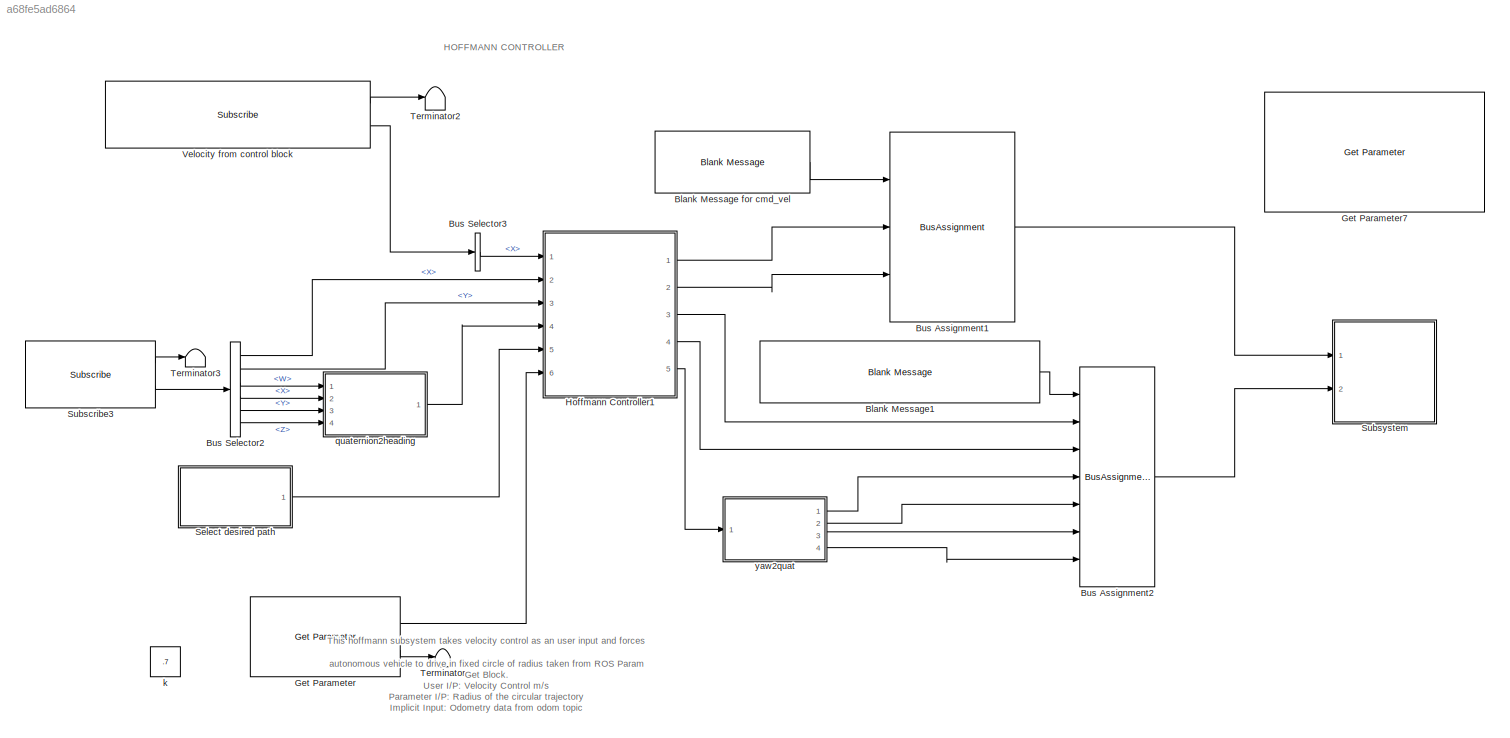
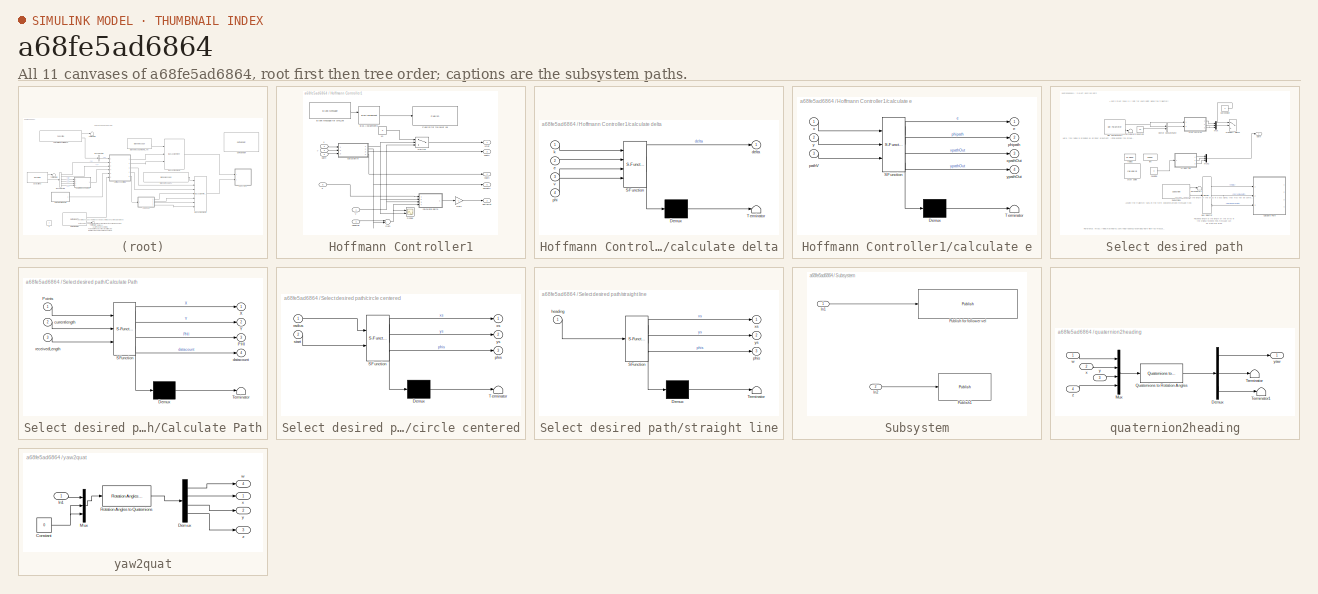
[diagram: thumbnail index - all 11 canvases of the model, root first then tree order]
MODEL slx_a68fe5ad6864
KIND model
CONFIG AbsTol = auto
CONFIG EnableMultiTasking = on
CONFIG FixedStep = 0.01
CONFIG MaxStep = auto
CONFIG MinStep = auto
CONFIG RelTol = 1e-3
CONFIG SampleTimeConstraint = Unconstrained
CONFIG SolverName = FixedStepAuto
CONFIG StartTime = 0.0
CONFIG StopTime = inf
WORKSPACE source: external: MATLAB File  (data not in archive)
BLOCK [Reference] Blank Message for cmd_vel  REF=robotlib/Blank Message
  Ports = [0, 1]
  SourceBlock = robotlib/Blank Message
  SourceProductBaseCode = RR
  SourceType = ROS Blank Message
BLOCK [Reference] Blank Message1  REF=robotlib/Blank Message
  Ports = [0, 1]
  SourceBlock = robotlib/Blank Message
  SourceProductBaseCode = RR
  SourceType = ROS Blank Message
BLOCK [BusAssignment] Bus Assignment1
  AssignedSignals = Linear.X,Angular.Z
  Ports = [3, 1]
BLOCK [BusAssignment] Bus Assignment2
  AssignedSignals = Pose.Position.X,Pose.Position.Y,Pose.Orientation.X,Pose.Orientation.Y,Pose.Orientation.Z,Pose.Orientation.W
  Ports = [7, 1]
BLOCK [BusSelector] Bus Selector2
  OutputSignals = Pose.Pose.Position.X,Pose.Pose.Position.Y,Pose.Pose.Orientation.W,Pose.Pose.Orientation.X,Pose.Pose.Orientation.Y,Pose.Pose.Orientation.Z
  Ports = [1, 6]
BLOCK [BusSelector] Bus Selector3
  OutputSignals = Linear.X
  Ports = [1, 1]
BLOCK [Reference] Get Parameter  REF=robotlib/Get Parameter
  Ports = [0, 2]
  SourceBlock = robotlib/Get Parameter
  SourceProductBaseCode = RR
  SourceType = ROS Get Parameter
BLOCK [Reference] Get Parameter7  REF=robotlib/Get Parameter
  Commented = on
  Ports = [0, 1]
  SourceBlock = robotlib/Get Parameter
  SourceProductBaseCode = RR
  SourceType = ROS Get Parameter
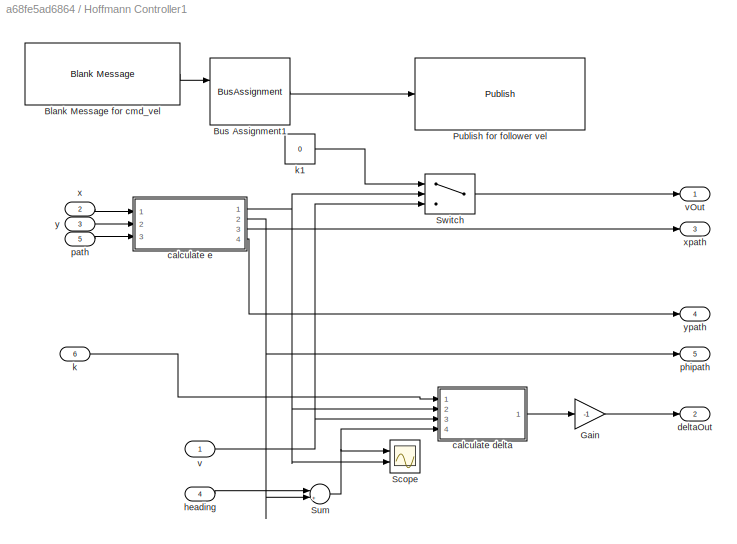
BLOCK [SubSystem] Hoffmann Controller1
  Ports = [6, 5]
  RequestExecContextInheritance = off
BLOCK [Reference] Hoffmann Controller1/Blank Message for cmd_vel  REF=robotlib/Blank Message
  Commented = on
  Ports = [0, 1]
  SourceBlock = robotlib/Blank Message
  SourceProductBaseCode = RR
  SourceType = ROS Blank Message
BLOCK [BusAssignment] Hoffmann Controller1/Bus Assignment1
  AssignedSignals = Data
  Commented = on
  Ports = [2, 1]
BLOCK [Gain] Hoffmann Controller1/Gain
  Gain = -1
BLOCK [Reference] Hoffmann Controller1/Publish for follower vel  REF=robotlib/Publish
  Commented = on
  Ports = [1]
  SourceBlock = robotlib/Publish
  SourceProductBaseCode = RR
  SourceType = ROS Publish
BLOCK [Scope] Hoffmann Controller1/Scope
  Floating = off
  NumInputPorts = 2
  Ports = [2]
  ScopeSpecificationString = Simulink.scopes.TimeScopeBlockCfg('CurrentConfiguration', extmgr.ConfigurationSet(extmgr.Configuration('Core','General UI',true),extmgr.Configuration('Core','Source UI',true),extmgr.Configuration('Sources','WiredSimulink',true),extmgr.Configuration('Visuals','Time Domain',true,'SerializedDisplays',{struct('MinYLimReal','-7.55905','MaxYLimReal','1.64715','YLabelReal','','MinYLimMag','0.00000','MaxY...<+1391ch>
BLOCK [Sum] Hoffmann Controller1/Sum
  Inputs = |+-
  Ports = [2, 1]
BLOCK [Switch] Hoffmann Controller1/Switch
  Criteria = u2 > Threshold
  InputSameDT = off
  SaturateOnIntegerOverflow = off
  Threshold = 4
BLOCK [SubSystem] Hoffmann Controller1/calculate delta
  ErrorFcn = Stateflow.Translate.translate
  PermitHierarchicalResolution = ExplicitOnly
  Ports = [4, 1]
  RequestExecContextInheritance = off
  SFBlockType = MATLAB Function
  TreatAsAtomicUnit = on
BLOCK [Demux] Hoffmann Controller1/calculate delta/ Demux 
  Outputs = 1
  Ports = [1, 1]
BLOCK [S-Function] Hoffmann Controller1/calculate delta/ SFunction 
  EnableBusSupport = off
  FunctionName = sf_sfun
  PortCounts = [4 2]
  Ports = [4, 2]
  SFcnIsStateOwnerBlock = off
  SFunctionDeploymentMode = off
  Tag = Stateflow S-Function 9
BLOCK [Terminator] Hoffmann Controller1/calculate delta/ Terminator 
BLOCK [Outport] Hoffmann Controller1/calculate delta/delta
  VectorParamsAs1DForOutWhenUnconnected = off
BLOCK [Inport] Hoffmann Controller1/calculate delta/e
  Port = 2
BLOCK [Inport] Hoffmann Controller1/calculate delta/k
BLOCK [Inport] Hoffmann Controller1/calculate delta/phi
  Port = 4
BLOCK [Inport] Hoffmann Controller1/calculate delta/v
  Port = 3
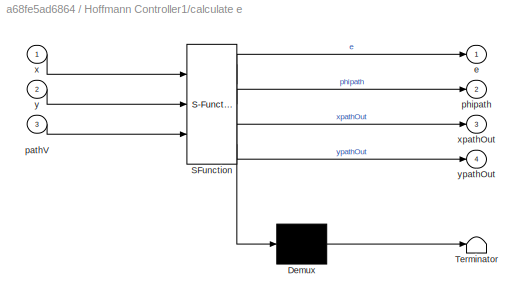
BLOCK [SubSystem] Hoffmann Controller1/calculate e
  ErrorFcn = Stateflow.Translate.translate
  PermitHierarchicalResolution = ExplicitOnly
  Ports = [3, 4]
  RequestExecContextInheritance = off
  SFBlockType = MATLAB Function
  TreatAsAtomicUnit = on
BLOCK [Demux] Hoffmann Controller1/calculate e/ Demux 
  Outputs = 1
  Ports = [1, 1]
BLOCK [S-Function] Hoffmann Controller1/calculate e/ SFunction 
  EnableBusSupport = off
  FunctionName = sf_sfun
  PortCounts = [3 5]
  Ports = [3, 5]
  SFcnIsStateOwnerBlock = off
  SFunctionDeploymentMode = off
  Tag = Stateflow S-Function 10
BLOCK [Terminator] Hoffmann Controller1/calculate e/ Terminator 
BLOCK [Outport] Hoffmann Controller1/calculate e/e
  VectorParamsAs1DForOutWhenUnconnected = off
BLOCK [Inport] Hoffmann Controller1/calculate e/pathV
  Port = 3
BLOCK [Outport] Hoffmann Controller1/calculate e/phipath
  Port = 2
  VectorParamsAs1DForOutWhenUnconnected = off
BLOCK [Inport] Hoffmann Controller1/calculate e/x
BLOCK [Outport] Hoffmann Controller1/calculate e/xpathOut
  Port = 3
  VectorParamsAs1DForOutWhenUnconnected = off
BLOCK [Inport] Hoffmann Controller1/calculate e/y
  Port = 2
BLOCK [Outport] Hoffmann Controller1/calculate e/ypathOut
  Port = 4
  VectorParamsAs1DForOutWhenUnconnected = off
BLOCK [Outport] Hoffmann Controller1/deltaOut
  Port = 2
  VectorParamsAs1DForOutWhenUnconnected = off
BLOCK [Inport] Hoffmann Controller1/heading
  Port = 4
BLOCK [Inport] Hoffmann Controller1/k
  Port = 6
BLOCK [Constant] Hoffmann Controller1/k1
  Value = 0
BLOCK [Inport] Hoffmann Controller1/path
  Port = 5
BLOCK [Outport] Hoffmann Controller1/phipath
  Port = 5
  VectorParamsAs1DForOutWhenUnconnected = off
BLOCK [Inport] Hoffmann Controller1/v
  NameLocation = top
BLOCK [Outport] Hoffmann Controller1/vOut
  VectorParamsAs1DForOutWhenUnconnected = off
BLOCK [Inport] Hoffmann Controller1/x
  Port = 2
BLOCK [Outport] Hoffmann Controller1/xpath
  Port = 3
  VectorParamsAs1DForOutWhenUnconnected = off
BLOCK [Inport] Hoffmann Controller1/y
  Port = 3
BLOCK [Outport] Hoffmann Controller1/ypath
  Port = 4
  VectorParamsAs1DForOutWhenUnconnected = off
BLOCK [SubSystem] Select desired path
  Ports = [0, 1]
  RequestExecContextInheritance = off
BLOCK [BusSelector] Select desired path/Bus Selector
  Commented = on
  OutputSignals = Polygon.Points,Polygon.Points_SL_Info.CurrentLength,Polygon.Points_SL_Info.ReceivedLength
  Ports = [1, 3]
BLOCK [SubSystem] Select desired path/Calculate Path
  Commented = on
  ErrorFcn = Stateflow.Translate.translate
  PermitHierarchicalResolution = ExplicitOnly
  Ports = [3, 4]
  RequestExecContextInheritance = off
  SFBlockType = MATLAB Function
  TreatAsAtomicUnit = on
BLOCK [Demux] Select desired path/Calculate Path/ Demux 
  Outputs = 1
  Ports = [1, 1]
BLOCK [S-Function] Select desired path/Calculate Path/ SFunction 
  EnableBusSupport = off
  FunctionName = sf_sfun
  PortCounts = [3 5]
  Ports = [3, 5]
  SFcnIsStateOwnerBlock = off
  SFunctionDeploymentMode = off
  Tag = Stateflow S-Function 2
BLOCK [Terminator] Select desired path/Calculate Path/ Terminator 
BLOCK [Outport] Select desired path/Calculate Path/PHI
  Port = 3
  VectorParamsAs1DForOutWhenUnconnected = off
BLOCK [Inport] Select desired path/Calculate Path/Points
BLOCK [Outport] Select desired path/Calculate Path/X
  VectorParamsAs1DForOutWhenUnconnected = off
BLOCK [Outport] Select desired path/Calculate Path/Y
  Port = 2
  VectorParamsAs1DForOutWhenUnconnected = off
BLOCK [Inport] Select desired path/Calculate Path/currentlength
  Port = 2
BLOCK [Outport] Select desired path/Calculate Path/datacount
  Port = 4
  VectorParamsAs1DForOutWhenUnconnected = off
BLOCK [Inport] Select desired path/Calculate Path/receivedLength
  Port = 3
BLOCK [Constant] Select desired path/Constant
  Commented = on
  Value = 0.0
BLOCK [Reference] Select desired path/Get Parameter1  REF=robotlib/Get Parameter
  Commented = on
  Ports = [0, 2]
  SourceBlock = robotlib/Get Parameter
  SourceProductBaseCode = RR
  SourceType = ROS Get Parameter
BLOCK [MultiPortSwitch] Select desired path/Multiport Switch
  Commented = on
  InputSameDT = off
  Inputs = 2
  Ports = [3, 1]
  SaturateOnIntegerOverflow = off
BLOCK [Mux] Select desired path/Mux
  Commented = on
  DisplayOption = bar
  Inputs = 3
  Ports = [3, 1]
BLOCK [Mux] Select desired path/Mux2
  DisplayOption = bar
  Inputs = 3
  Ports = [3, 1]
BLOCK [Reference] Select desired path/Subscribe1  REF=robotlib/Subscribe
  Commented = on
  Ports = [0, 2]
  SourceBlock = robotlib/Subscribe
  SourceProductBaseCode = RR
  SourceType = ROS Subscribe
BLOCK [Terminator] Select desired path/Terminator1
  Commented = on
BLOCK [Terminator] Select desired path/Terminator2
  Commented = on
BLOCK [Concatenate] Select desired path/Vector Concatenate
  Commented = on
  Ports = [2, 1]
BLOCK [SubSystem] Select desired path/circle centered
  Commented = on
  ErrorFcn = Stateflow.Translate.translate
  PermitHierarchicalResolution = ExplicitOnly
  Ports = [2, 3]
  RequestExecContextInheritance = off
  SFBlockType = MATLAB Function
  TreatAsAtomicUnit = on
BLOCK [Demux] Select desired path/circle centered/ Demux 
  Outputs = 1
  Ports = [1, 1]
BLOCK [S-Function] Select desired path/circle centered/ SFunction 
  EnableBusSupport = off
  FunctionName = sf_sfun
  PortCounts = [2 4]
  Ports = [2, 4]
  SFcnIsStateOwnerBlock = off
  SFunctionDeploymentMode = off
  Tag = Stateflow S-Function 4
BLOCK [Terminator] Select desired path/circle centered/ Terminator 
BLOCK [Outport] Select desired path/circle centered/phis
  Port = 3
  VectorParamsAs1DForOutWhenUnconnected = off
BLOCK [Inport] Select desired path/circle centered/radius
BLOCK [Inport] Select desired path/circle centered/start
  Port = 2
BLOCK [Outport] Select desired path/circle centered/xs
  VectorParamsAs1DForOutWhenUnconnected = off
BLOCK [Outport] Select desired path/circle centered/ys
  Port = 2
  VectorParamsAs1DForOutWhenUnconnected = off
BLOCK [Constant] Select desired path/heading
  Value = 0
BLOCK [Constant] Select desired path/len
  Commented = on
  Value = 10000
BLOCK [Outport] Select desired path/path
  VectorParamsAs1DForOutWhenUnconnected = off
BLOCK [Constant] Select desired path/pathChoice 
  Commented = on
  Value = 2
BLOCK [Constant] Select desired path/radius
  Commented = on
  Value = 41.3803
BLOCK [Constant] Select desired path/start point
  Commented = on
  Value = [36.606 0]
BLOCK [SubSystem] Select desired path/straight line
  ErrorFcn = Stateflow.Translate.translate
  PermitHierarchicalResolution = ExplicitOnly
  Ports = [1, 3]
  RequestExecContextInheritance = off
  SFBlockType = MATLAB Function
  TreatAsAtomicUnit = on
BLOCK [Demux] Select desired path/straight line/ Demux 
  Outputs = 1
  Ports = [1, 1]
BLOCK [S-Function] Select desired path/straight line/ SFunction 
  EnableBusSupport = off
  FunctionName = sf_sfun
  PortCounts = [1 4]
  Ports = [1, 4]
  SFcnIsStateOwnerBlock = off
  SFunctionDeploymentMode = off
  Tag = Stateflow S-Function 5
BLOCK [Terminator] Select desired path/straight line/ Terminator 
BLOCK [Inport] Select desired path/straight line/heading
BLOCK [Outport] Select desired path/straight line/phis
  Port = 3
  VectorParamsAs1DForOutWhenUnconnected = off
BLOCK [Outport] Select desired path/straight line/xs
  VectorParamsAs1DForOutWhenUnconnected = off
BLOCK [Outport] Select desired path/straight line/ys
  Port = 2
  VectorParamsAs1DForOutWhenUnconnected = off
BLOCK [Reference] Subscribe3  REF=robotlib/Subscribe
  Ports = [0, 2]
  SourceBlock = robotlib/Subscribe
  SourceProductBaseCode = RR
  SourceType = ROS Subscribe
BLOCK [SubSystem] Subsystem
  Ports = [2]
  RequestExecContextInheritance = off
BLOCK [Inport] Subsystem/In1
BLOCK [Inport] Subsystem/In2
  Port = 2
BLOCK [Reference] Subsystem/Publish for follower vel  REF=robotlib/Publish
  Ports = [1]
  SourceBlock = robotlib/Publish
  SourceProductBaseCode = RR
  SourceType = ROS Publish
BLOCK [Reference] Subsystem/Publish1  REF=robotlib/Publish
  NameLocation = top
  Ports = [1]
  SourceBlock = robotlib/Publish
  SourceProductBaseCode = RR
  SourceType = ROS Publish
BLOCK [Terminator] Terminator
BLOCK [Terminator] Terminator2
BLOCK [Terminator] Terminator3
BLOCK [Reference] Velocity from control block   REF=robotlib/Subscribe
  Ports = [0, 2]
  SourceBlock = robotlib/Subscribe
  SourceProductBaseCode = RR
  SourceType = ROS Subscribe
BLOCK [Constant] k
  Commented = on
  Value = .7
BLOCK [SubSystem] quaternion2heading
  Ports = [4, 1]
  RequestExecContextInheritance = off
BLOCK [Demux] quaternion2heading/Demux
  Outputs = 3
  Ports = [1, 3]
BLOCK [Mux] quaternion2heading/Mux
  DisplayOption = bar
  Ports = [4, 1]
BLOCK [Reference] quaternion2heading/Quaternions to Rotation Angles  REF=sharedtransform/Quaternions to Rotation Angles
  AttributesFormatString = Rotation Order: %<rotationOrder>
  Ports = [1, 1]
  SourceBlock = sharedtransform/Quaternions to Rotation Angles
  SourceProductBaseCode = AE,PW,DR,MT,UV,VE
  SourceType = Quat2Ang
BLOCK [Terminator] quaternion2heading/Terminator
BLOCK [Terminator] quaternion2heading/Terminator1
BLOCK [Inport] quaternion2heading/w
BLOCK [Inport] quaternion2heading/x
  Port = 2
BLOCK [Inport] quaternion2heading/y
  Port = 3
BLOCK [Outport] quaternion2heading/yaw
  VectorParamsAs1DForOutWhenUnconnected = off
BLOCK [Inport] quaternion2heading/z
  Port = 4
BLOCK [SubSystem] yaw2quat
  Ports = [1, 4]
  RequestExecContextInheritance = off
BLOCK [Constant] yaw2quat/Constant
  Value = 0
BLOCK [Demux] yaw2quat/Demux
  Ports = [1, 4]
BLOCK [Inport] yaw2quat/In1
BLOCK [Mux] yaw2quat/Mux
  DisplayOption = bar
  Inputs = 3
  Ports = [3, 1]
BLOCK [Reference] yaw2quat/Rotation Angles to Quaternions  REF=sharedtransform/Rotation Angles to Quaternions
  AttributesFormatString = Rotation Order: %<rotationOrder>
  Ports = [1, 1]
  SourceBlock = sharedtransform/Rotation Angles to Quaternions
  SourceProductBaseCode = AE,PW,DR,MT,UV,VE
  SourceType = Ang2Quat
BLOCK [Outport] yaw2quat/w
  Port = 4
  VectorParamsAs1DForOutWhenUnconnected = off
BLOCK [Outport] yaw2quat/x
  VectorParamsAs1DForOutWhenUnconnected = off
BLOCK [Outport] yaw2quat/y
  Port = 2
  VectorParamsAs1DForOutWhenUnconnected = off
BLOCK [Outport] yaw2quat/z
  Port = 3
  VectorParamsAs1DForOutWhenUnconnected = off
ANNOTATION (root): This hoffmann subsystem takes velocity control as an user input and forces autonomous vehicle to drive in fixed circle of radius taken from ROS Param Get Block. User I/P: Velocity Control m/s Parameter I/P: Radius of the circular trajectory Implicit Input: Odometry data from odom topic Output: Calculated Velocity and Waypoints.
ANNOTATION (root): HOFFMANN CONTROLLER
ANNOTATION Select desired path: Current Length is the length of the array in a bus signal, that may not be same as received length
ANNOTATION Select desired path: Reference: https://www.mathworks.com/help/robotics/examples/work-with-ros-messages-in-simulink.html
ANNOTATION Select desired path: Received length is the length of the array in the original received ROS message can be arbitrarily large
ANNOTATION Select desired path: A path must have [x y phi] for each point along the trajectory
ANNOTATION Select desired path: Acquire the trajectory data in the form polygonstamped message type.
ANNOTATION Select desired path: Here, the radius is provided as an input argument. Initial position the circular trajector is calculated as (x,y) = (radius, 0)
LINE Blank Message for cmd_vel:1 -> Bus Assignment1:1
LINE Blank Message1:1 -> Bus Assignment2:1
LINE Bus Assignment1:1 -> Subsystem:1
LINE Bus Assignment2:1 -> Subsystem:2
LINE Bus Selector2:1 -> Hoffmann Controller1:2
LINE Bus Selector2:2 -> Hoffmann Controller1:3
LINE Bus Selector2:3 -> quaternion2heading:1
LINE Bus Selector2:4 -> quaternion2heading:2
LINE Bus Selector2:5 -> quaternion2heading:3
LINE Bus Selector2:6 -> quaternion2heading:4
LINE Bus Selector3:1 -> Hoffmann Controller1:1
LINE Get Parameter:1 -> Hoffmann Controller1:6
LINE Get Parameter:2 -> Terminator:1
LINE Hoffmann Controller1/Blank Message for cmd_vel:1 -> Hoffmann Controller1/Bus Assignment1:1
LINE Hoffmann Controller1/Bus Assignment1:1 -> Hoffmann Controller1/Publish for follower vel:1
LINE Hoffmann Controller1/Gain:1 -> Hoffmann Controller1/deltaOut:1
NET Hoffmann Controller1/Sum:1 -> Hoffmann Controller1/Scope:1, Hoffmann Controller1/calculate delta:4
LINE Hoffmann Controller1/Switch:1 -> Hoffmann Controller1/vOut:1
LINE Hoffmann Controller1/calculate delta:1 -> Hoffmann Controller1/Gain:1
NET Hoffmann Controller1/calculate e:1 -> Hoffmann Controller1/Scope:2, Hoffmann Controller1/Switch:2, Hoffmann Controller1/calculate delta:2
NET Hoffmann Controller1/calculate e:2 -> Hoffmann Controller1/Sum:2, Hoffmann Controller1/phipath:1
LINE Hoffmann Controller1/calculate e:3 -> Hoffmann Controller1/xpath:1
LINE Hoffmann Controller1/calculate e:4 -> Hoffmann Controller1/ypath:1
LINE Hoffmann Controller1/heading:1 -> Hoffmann Controller1/Sum:1
LINE Hoffmann Controller1/k1:1 -> Hoffmann Controller1/Switch:1
LINE Hoffmann Controller1/k:1 -> Hoffmann Controller1/calculate delta:1
LINE Hoffmann Controller1/path:1 -> Hoffmann Controller1/calculate e:3
NET Hoffmann Controller1/v:1 -> Hoffmann Controller1/Switch:3, Hoffmann Controller1/calculate delta:3
LINE Hoffmann Controller1/x:1 -> Hoffmann Controller1/calculate e:1
LINE Hoffmann Controller1/y:1 -> Hoffmann Controller1/calculate e:2
LINE Hoffmann Controller1:1 -> Bus Assignment1:2
LINE Hoffmann Controller1:2 -> Bus Assignment1:3
LINE Hoffmann Controller1:3 -> Bus Assignment2:2
LINE Hoffmann Controller1:4 -> Bus Assignment2:3
LINE Hoffmann Controller1:5 -> yaw2quat:1
LINE Select desired path/Bus Selector:1 -> Select desired path/Calculate Path:1
LINE Select desired path/Bus Selector:2 -> Select desired path/Calculate Path:2
LINE Select desired path/Bus Selector:3 -> Select desired path/Calculate Path:3
LINE Select desired path/Constant:1 -> Select desired path/Vector Concatenate:2
NET Select desired path/Get Parameter1:1 -> Select desired path/Vector Concatenate:1, Select desired path/circle centered:1
LINE Select desired path/Get Parameter1:2 -> Select desired path/Terminator2:1
LINE Select desired path/Mux2:1 -> Select desired path/path:1
LINE Select desired path/Mux:1 -> Select desired path/Multiport Switch:2
LINE Select desired path/Subscribe1:1 -> Select desired path/Terminator1:1
LINE Select desired path/Subscribe1:2 -> Select desired path/Bus Selector:1
LINE Select desired path/Vector Concatenate:1 -> Select desired path/circle centered:2
LINE Select desired path/circle centered:1 -> Select desired path/Mux:1
LINE Select desired path/circle centered:2 -> Select desired path/Mux:2
LINE Select desired path/circle centered:3 -> Select desired path/Mux:3
LINE Select desired path/heading:1 -> Select desired path/straight line:1
LINE Select desired path/pathChoice :1 -> Select desired path/Multiport Switch:1
LINE Select desired path/straight line:1 -> Select desired path/Mux2:1
LINE Select desired path/straight line:2 -> Select desired path/Mux2:2
LINE Select desired path/straight line:3 -> Select desired path/Mux2:3
LINE Select desired path:1 -> Hoffmann Controller1:5
LINE Subscribe3:1 -> Terminator3:1
LINE Subscribe3:2 -> Bus Selector2:1
LINE Subsystem/In1:1 -> Subsystem/Publish for follower vel:1
LINE Subsystem/In2:1 -> Subsystem/Publish1:1
LINE Velocity from control block :1 -> Terminator2:1
LINE Velocity from control block :2 -> Bus Selector3:1
LINE quaternion2heading/Demux:1 -> quaternion2heading/yaw:1
LINE quaternion2heading/Demux:2 -> quaternion2heading/Terminator:1
LINE quaternion2heading/Demux:3 -> quaternion2heading/Terminator1:1
LINE quaternion2heading/Mux:1 -> quaternion2heading/Quaternions to Rotation Angles:1
LINE quaternion2heading/Quaternions to Rotation Angles:1 -> quaternion2heading/Demux:1
LINE quaternion2heading/w:1 -> quaternion2heading/Mux:1
LINE quaternion2heading/x:1 -> quaternion2heading/Mux:2
LINE quaternion2heading/y:1 -> quaternion2heading/Mux:3
LINE quaternion2heading/z:1 -> quaternion2heading/Mux:4
LINE quaternion2heading:1 -> Hoffmann Controller1:4
NET yaw2quat/Constant:1 -> yaw2quat/Mux:2, yaw2quat/Mux:3
LINE yaw2quat/Demux:1 -> yaw2quat/w:1
LINE yaw2quat/Demux:2 -> yaw2quat/x:1
LINE yaw2quat/Demux:3 -> yaw2quat/y:1
LINE yaw2quat/Demux:4 -> yaw2quat/z:1
LINE yaw2quat/In1:1 -> yaw2quat/Mux:1
LINE yaw2quat/Mux:1 -> yaw2quat/Rotation Angles to Quaternions:1
LINE yaw2quat/Rotation Angles to Quaternions:1 -> yaw2quat/Demux:1
LINE yaw2quat:1 -> Bus Assignment2:4
LINE yaw2quat:2 -> Bus Assignment2:5
LINE yaw2quat:3 -> Bus Assignment2:6
LINE yaw2quat:4 -> Bus Assignment2:7
note: NET lines group one-source signal fan-out (src -> all destinations, sorted); 1:1 wires keep LINE
CHART Select desired path/Calculate Path states=1 transitions=1
  STATE_LABEL 'eML_blk_kernel()'
  STATE_LABEL 'SCRIPT:\nfunction [X, Y,PHI,datacount] = fcn(Points, currentlength, receivedLength)\n%#codegen\n\n\nX = zeros(8000,1);\nY = zeros(8000,1);\nPHI = zeros(8000,1);\n\n%We will work on array using the current Length as, Simulink might\n%truncate an arbitrarily large according to the maximum length set\n\n\nfor i = 1:currentlength\n        %Points(i).X\n        %Points(i).Y\n        X(i) = Points(i).X;\n        Y(i) = ...<+402ch>'
CHART Select desired path/circle centered states=1 transitions=1
  STATE_LABEL 'eML_blk_kernel()'
  STATE_LABEL 'SCRIPT:\nfunction [xs,ys,phis] = fcn(radius,start)\n%#codegen\nangles=linspace(-pi,pi,3001);\nr = radius*exp(angles*1j);\nxs = real(r)-radius+start(1);\nys = imag(r)+start(2);\nphis=(pi/2)+angles;\n\n% % To visualize the angles, run this code:\n% radius=3.6; start=[0 0];\n% angles=linspace(-pi,pi,300);\n% r = radius*exp(angles*1j);\n% xs = real(r)-radius+start(1);\n% ys = imag(r)+start(2);\n% % since the directi...<+228ch>'
CHART Select desired path/straight line states=1 transitions=1
  STATE_LABEL 'eML_blk_kernel()'
  STATE_LABEL 'SCRIPT:\nfunction [xs,ys,phis] = fcn(heading)\n%#codegen\nr = linspace(0,10000,10000);\nxs = r*cos(heading);\nys = r*sin(heading);\nphis = heading*ones(1,length(r));\n'
CHART Hoffmann Controller1/calculate delta states=1 transitions=1
  STATE_LABEL 'eML_blk_kernel()'
  STATE_LABEL 'SCRIPT:\nfunction delta = fcn(k,e,v,phi)\n%#codegen\nif( abs(v) < eps )\n    v = eps;\nend\n\n% if phi is greater than pi (or less than -pi), then \n% we normalize to between [-pi,pi]\nif( phi < -pi )\n    phi = phi+2*pi;\nelseif( phi > pi )\n    phi = phi-2*pi;\nend\n\ndelta = phi + atan2(k*e,v);'
CHART Hoffmann Controller1/calculate e states=1 transitions=1
  STATE_LABEL 'eML_blk_kernel()'
  STATE_LABEL 'SCRIPT:\nfunction [e,phipath,xpathOut,ypathOut] = fcn(x,y,pathV)\n%#codegen\npath=reshape(pathV,[],3);\nx1 = path(1,1);\ny1 = path(1,2);\nphi1=path(1,3);\netmp = inf;\ne = inf;\nindex=1;\n% find the nearest x,y\nfor i=1:length(path)\n   etmp = sqrt((x-path(i,1))^2+(y-path(i,2))^2);\n   if( etmp < e )\n       e = etmp;\n       index=i;\n   end\nend\n\nxpathOut=path(index,1);\nypathOut=path(index,2);\nphipath=path(index...<+142ch>'
CHART  states=0 transitions=0
CHART  states=0 transitions=0
CHART  states=0 transitions=0
CHART  states=0 transitions=0
CHART  states=0 transitions=0
